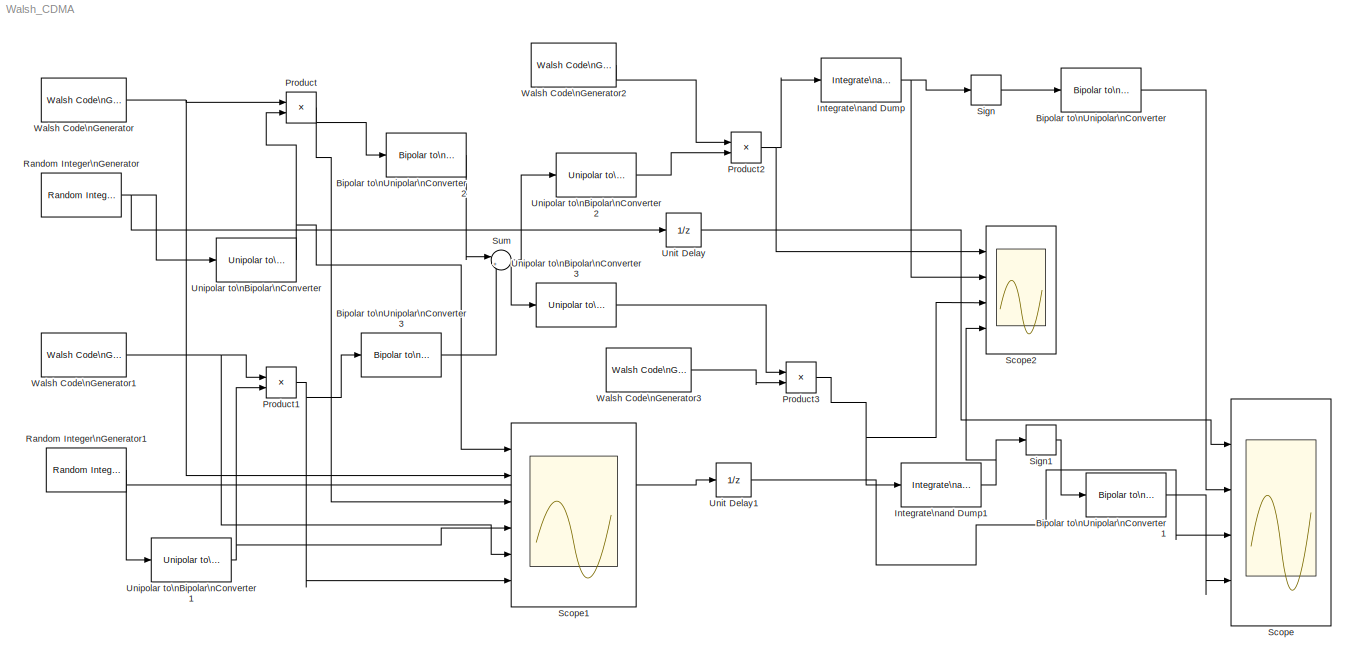
MODEL Walsh_CDMA
KIND model
BLOCK [Reference] Bipolar to\nUnipolar\nConverter  REF=commutil2/Bipolar to\nUnipolar\nConverter
  M = 2
  Ports = [1, 1]
  SID = 41
  SourceBlock = commutil2/Bipolar to\nUnipolar\nConverter
  SourceType = Bipolar to Unipolar Converter
  dataType = Inherit via internal rule
  polarity = Positive
BLOCK [Reference] Bipolar to\nUnipolar\nConverter1  REF=commutil2/Bipolar to\nUnipolar\nConverter
  M = 2
  Ports = [1, 1]
  SID = 42
  SourceBlock = commutil2/Bipolar to\nUnipolar\nConverter
  SourceType = Bipolar to Unipolar Converter
  dataType = Inherit via internal rule
  polarity = Positive
BLOCK [Reference] Bipolar to\nUnipolar\nConverter2  REF=commutil2/Bipolar to\nUnipolar\nConverter
  M = 2
  Ports = [1, 1]
  SID = 46
  SourceBlock = commutil2/Bipolar to\nUnipolar\nConverter
  SourceType = Bipolar to Unipolar Converter
  dataType = Inherit via internal rule
  polarity = Positive
BLOCK [Reference] Bipolar to\nUnipolar\nConverter3  REF=commutil2/Bipolar to\nUnipolar\nConverter
  M = 2
  Ports = [1, 1]
  SID = 47
  SourceBlock = commutil2/Bipolar to\nUnipolar\nConverter
  SourceType = Bipolar to Unipolar Converter
  dataType = Inherit via internal rule
  polarity = Positive
BLOCK [Reference] Integrate\nand Dump  REF=commfilt2/Integrate\nand Dump
  LockScale = off
  Ports = [1, 1]
  SID = 35
  SourceBlock = commfilt2/Integrate\nand Dump
  SourceType = Integrate and Dump
  accumFracLength = 30
  accumMode = Inherit via internal rule
  accumWordLength = 32
  nodump = off
  obssamples = 10
  offsetsamples = 0
  outputFracLength = 30
  outputMode = Same as accumulator
  outputWordLength = 32
  overflowMode = off
  roundingMode = Floor
BLOCK [Reference] Integrate\nand Dump1  REF=commfilt2/Integrate\nand Dump
  LockScale = off
  Ports = [1, 1]
  SID = 36
  SourceBlock = commfilt2/Integrate\nand Dump
  SourceType = Integrate and Dump
  accumFracLength = 30
  accumMode = Inherit via internal rule
  accumWordLength = 32
  nodump = off
  obssamples = 10
  offsetsamples = 0
  outputFracLength = 30
  outputMode = Same as accumulator
  outputWordLength = 32
  overflowMode = off
  roundingMode = Floor
BLOCK [Product] Product
  InputSameDT = off
  OutDataTypeStr = Inherit: Inherit via internal rule
  Ports = [2, 1]
  SID = 6
  SaturateOnIntegerOverflow = off
BLOCK [Product] Product1
  InputSameDT = off
  OutDataTypeStr = Inherit: Inherit via internal rule
  Ports = [2, 1]
  SID = 30
  SaturateOnIntegerOverflow = off
BLOCK [Product] Product2
  InputSameDT = off
  OutDataTypeStr = Inherit: Inherit via internal rule
  Ports = [2, 1]
  SID = 10
  SaturateOnIntegerOverflow = off
BLOCK [Product] Product3
  InputSameDT = off
  OutDataTypeStr = Inherit: Inherit via internal rule
  Ports = [2, 1]
  SID = 34
  SaturateOnIntegerOverflow = off
BLOCK [Reference] Random Integer\nGenerator  REF=commrandsrc2/Random Integer\nGenerator
  Ports = [0, 1]
  SID = 3
  SourceBlock = commrandsrc2/Random Integer\nGenerator
  SourceType = Random Integer Generator
  Ts = 1
  frameBased = off
  mul = 2
  orient = off
  outDataType = double
  sampPerFrame = 1
  seed = 37
BLOCK [Reference] Random Integer\nGenerator1  REF=commrandsrc2/Random Integer\nGenerator
  Ports = [0, 1]
  SID = 27
  SourceBlock = commrandsrc2/Random Integer\nGenerator
  SourceType = Random Integer Generator
  Ts = 1
  frameBased = off
  mul = 2
  orient = off
  outDataType = double
  sampPerFrame = 1
  seed = 40
BLOCK [Scope] Scope
  DataFormat = StructureWithTime
  Floating = off
  NumInputPorts = 4
  Ports = [4]
  SID = 43
  SampleInput = on
  SampleTime = 1
  ShowLegends = off
  YMax = 5~5~5~5
  YMin = -5~-5~-5~-5
BLOCK [Scope] Scope1
  DataFormat = StructureWithTime
  Floating = off
  NumInputPorts = 6
  Ports = [6]
  SID = 32
  SampleTime = 0
  SaveName = ScopeData1
  ShowLegends = off
  YMax = 5~5~5~5~5~5
  YMin = -5~-5~-5~-5~-5~-5
BLOCK [Scope] Scope2
  DataFormat = StructureWithTime
  Floating = off
  NumInputPorts = 4
  Ports = [4]
  SID = 44
  SampleTime = 0
  SaveName = ScopeData2
  ShowLegends = off
  YMax = 5~5~5~5
  YMin = -5~-5~-5~-5
BLOCK [Signum] Sign
  SID = 37
BLOCK [Signum] Sign1
  SID = 38
BLOCK [Sum] Sum
  IconShape = round
  InputSameDT = off
  Inputs = |++
  OutDataTypeStr = Inherit: Inherit via internal rule
  Ports = [2, 1]
  SID = 31
  SaturateOnIntegerOverflow = off
BLOCK [Reference] Unipolar to\nBipolar\nConverter  REF=commutil2/Unipolar to\nBipolar\nConverter
  M = 2
  Ports = [1, 1]
  SID = 28
  SourceBlock = commutil2/Unipolar to\nBipolar\nConverter
  SourceType = Unipolar to Bipolar Converter
  dataType = Inherit via internal rule
  polarity = Positive
BLOCK [Reference] Unipolar to\nBipolar\nConverter1  REF=commutil2/Unipolar to\nBipolar\nConverter
  M = 2
  Ports = [1, 1]
  SID = 29
  SourceBlock = commutil2/Unipolar to\nBipolar\nConverter
  SourceType = Unipolar to Bipolar Converter
  dataType = Inherit via internal rule
  polarity = Positive
BLOCK [Reference] Unipolar to\nBipolar\nConverter2  REF=commutil2/Unipolar to\nBipolar\nConverter
  M = 2
  Ports = [1, 1]
  SID = 48
  SourceBlock = commutil2/Unipolar to\nBipolar\nConverter
  SourceType = Unipolar to Bipolar Converter
  dataType = Inherit via internal rule
  polarity = Positive
BLOCK [Reference] Unipolar to\nBipolar\nConverter3  REF=commutil2/Unipolar to\nBipolar\nConverter
  M = 2
  Ports = [1, 1]
  SID = 49
  SourceBlock = commutil2/Unipolar to\nBipolar\nConverter
  SourceType = Unipolar to Bipolar Converter
  dataType = Inherit via internal rule
  polarity = Positive
BLOCK [UnitDelay] Unit Delay
  InputProcessing = Elements as channels (sample based)
  SID = 50
  SampleTime = -1
BLOCK [UnitDelay] Unit Delay1
  InputProcessing = Elements as channels (sample based)
  SID = 51
  SampleTime = -1
BLOCK [Reference] Walsh Code\nGenerator  REF=commseqgen2/Walsh Code\nGenerator
  Ports = [0, 1]
  SID = 15
  SourceBlock = commseqgen2/Walsh Code\nGenerator
  SourceType = Walsh Code Generator
  frameBased = off
  index = 60
  length = 64
  outDataType = double
  sampPerFrame = 10
  ts = .1
BLOCK [Reference] Walsh Code\nGenerator1  REF=commseqgen2/Walsh Code\nGenerator
  Ports = [0, 1]
  SID = 26
  SourceBlock = commseqgen2/Walsh Code\nGenerator
  SourceType = Walsh Code Generator
  frameBased = off
  index = 55
  length = 64
  outDataType = double
  sampPerFrame = 10
  ts = .1
BLOCK [Reference] Walsh Code\nGenerator2  REF=commseqgen2/Walsh Code\nGenerator
  Ports = [0, 1]
  SID = 17
  SourceBlock = commseqgen2/Walsh Code\nGenerator
  SourceType = Walsh Code Generator
  frameBased = off
  index = 60
  length = 64
  outDataType = double
  sampPerFrame = 10
  ts = .1
BLOCK [Reference] Walsh Code\nGenerator3  REF=commseqgen2/Walsh Code\nGenerator
  Ports = [0, 1]
  SID = 33
  SourceBlock = commseqgen2/Walsh Code\nGenerator
  SourceType = Walsh Code Generator
  frameBased = off
  index = 55
  length = 64
  outDataType = double
  sampPerFrame = 10
  ts = .1
LINE Bipolar to\nUnipolar\nConverter1:1 -> Scope:4
LINE Bipolar to\nUnipolar\nConverter2:1 -> Sum:1
LINE Bipolar to\nUnipolar\nConverter3:1 -> Sum:2
LINE Bipolar to\nUnipolar\nConverter:1 -> Scope:2
NET Integrate\nand Dump1:1 -> Scope2:4, Sign1:1
NET Integrate\nand Dump:1 -> Scope2:2, Sign:1
NET Product1:1 -> Bipolar to\nUnipolar\nConverter3:1, Scope1:6
NET Product2:1 -> Integrate\nand Dump:1, Scope2:1
NET Product3:1 -> Integrate\nand Dump1:1, Scope2:3
NET Product:1 -> Bipolar to\nUnipolar\nConverter2:1, Scope1:3
NET Random Integer\nGenerator1:1 -> Unipolar to\nBipolar\nConverter1:1, Unit Delay1:1
NET Random Integer\nGenerator:1 -> Unipolar to\nBipolar\nConverter:1, Unit Delay:1
LINE Sign1:1 -> Bipolar to\nUnipolar\nConverter1:1
LINE Sign:1 -> Bipolar to\nUnipolar\nConverter:1
NET Sum:1 -> Unipolar to\nBipolar\nConverter2:1, Unipolar to\nBipolar\nConverter3:1
NET Unipolar to\nBipolar\nConverter1:1 -> Product1:2, Scope1:4
LINE Unipolar to\nBipolar\nConverter2:1 -> Product2:2
LINE Unipolar to\nBipolar\nConverter3:1 -> Product3:1
NET Unipolar to\nBipolar\nConverter:1 -> Product:2, Scope1:1
LINE Unit Delay1:1 -> Scope:3
LINE Unit Delay:1 -> Scope:1
NET Walsh Code\nGenerator1:1 -> Product1:1, Scope1:5
LINE Walsh Code\nGenerator2:1 -> Product2:1
LINE Walsh Code\nGenerator3:1 -> Product3:2
NET Walsh Code\nGenerator:1 -> Product:1, Scope1:2
note: NET lines group one-source signal fan-out (src -> all destinations, sorted); 1:1 wires keep LINE
